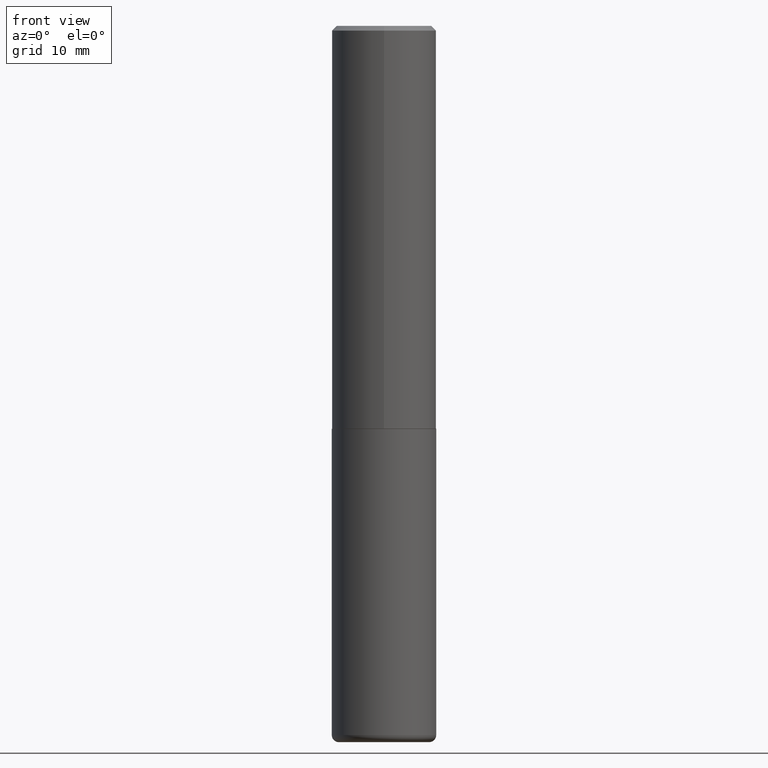
[diagram: clean part render]
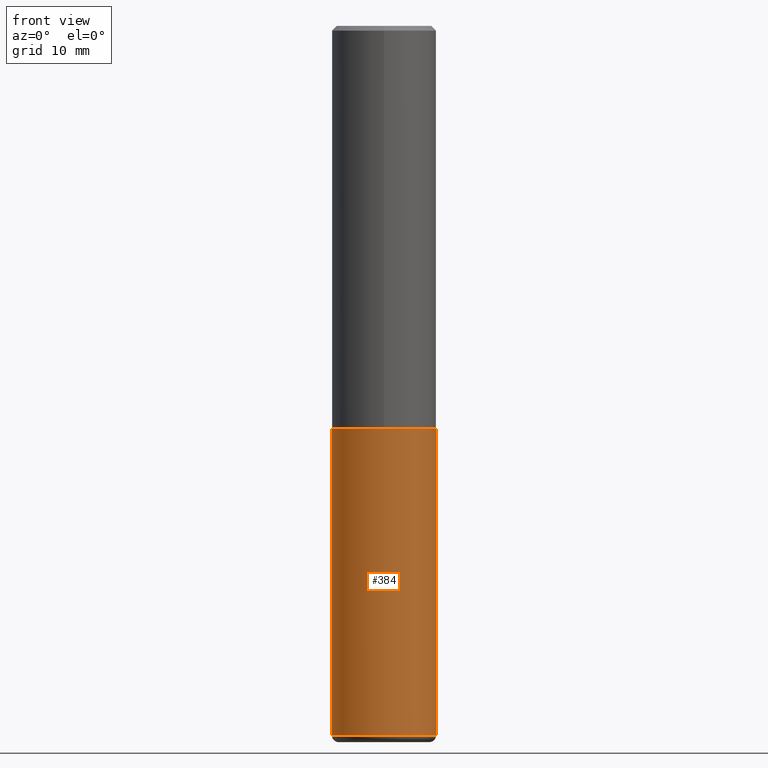
[diagram: same view with one face highlighted and labeled with its STEP entity id]
A machine part, front view. The second image highlights one B-rep face of the part: STEP entity #384.
In plain terms, the highlighted cylindrical surface (partial cylindrical patch) has radius 5.5563 mm, axis along (-0, 0, 1).
Its self-contained STEP definition (entity closure, byte-faithful):
#6 = CYLINDRICAL_SURFACE ( 'NONE', #35, 0.2187500000000000278 ) ;
#25 = EDGE_CURVE ( 'NONE', #200, #243, #87, .T. ) ;
#30 = DIRECTION ( 'NONE',  ( 1.000000000000000000, -6.982962677686267499E-15, 0.000000000000000000 ) ) ;
#35 = AXIS2_PLACEMENT_3D ( 'NONE', #268, #234, #39 ) ;
#36 = CARTESIAN_POINT ( 'NONE',  ( 0.2187500000000000000, -7.419397845041678890E-15, -1.687500000000000222 ) ) ;
#39 = DIRECTION ( 'NONE',  ( 1.000000000000000000, -6.982962677686266711E-15, 4.876176775795935232E-29 ) ) ;
#49 = AXIS2_PLACEMENT_3D ( 'NONE', #341, #247, #53 ) ;
#53 = DIRECTION ( 'NONE',  ( 1.000000000000000000, -6.982962677686271444E-15, 0.000000000000000000 ) ) ;
#61 = CARTESIAN_POINT ( 'NONE',  ( -0.2187500000000000000, -6.576474933355756753E-15, -1.687500000000000222 ) ) ;
#66 = CARTESIAN_POINT ( 'NONE',  ( 0.2187500000000001665, -1.189722266210801619E-14, -2.970000000000000195 ) ) ;
#87 = CIRCLE ( 'NONE', #49, 0.2187500000000000278 ) ;
#107 = CARTESIAN_POINT ( 'NONE',  ( 4.126728610437418568E-29, -5.891874759297808836E-15, -1.687500000000000222 ) ) ;
#126 = LINE ( 'NONE', #315, #252 ) ;
#129 = AXIS2_PLACEMENT_3D ( 'NONE', #107, #205, #30 ) ;
#131 = ORIENTED_EDGE ( 'NONE', *, *, #25, .T. ) ;
#166 = DIRECTION ( 'NONE',  ( -2.445468806185136877E-29, 3.491481338843145188E-15, 1.000000000000000000 ) ) ;
#177 = VERTEX_POINT ( 'NONE', #61 ) ;
#195 = DIRECTION ( 'NONE',  ( -2.445468806185136877E-29, 3.491481338843145188E-15, 1.000000000000000000 ) ) ;
#196 = CARTESIAN_POINT ( 'NONE',  ( -0.2187500000000000278, 1.554312234475219354E-15, -1.076017050993260762E-29 ) ) ;
#200 = VERTEX_POINT ( 'NONE', #418 ) ;
#205 = DIRECTION ( 'NONE',  ( -2.445468806185136597E-29, 3.491481338843145583E-15, 1.000000000000000000 ) ) ;
#234 = DIRECTION ( 'NONE',  ( -2.445468806185136597E-29, 3.491481338843145583E-15, 1.000000000000000000 ) ) ;
#237 = EDGE_LOOP ( 'NONE', ( #269, #131, #391, #263 ) ) ;
#238 = VECTOR ( 'NONE', #166, 39.37007874015748143 ) ;
#243 = VERTEX_POINT ( 'NONE', #66 ) ;
#247 = DIRECTION ( 'NONE',  ( -2.445468806185136597E-29, 3.491481338843145583E-15, 1.000000000000000000 ) ) ;
#252 = VECTOR ( 'NONE', #195, 39.37007874015748143 ) ;
#259 = CIRCLE ( 'NONE', #129, 0.2187500000000000000 ) ;
#260 = EDGE_CURVE ( 'NONE', #243, #326, #126, .T. ) ;
#261 = LINE ( 'NONE', #196, #238 ) ;
#263 = ORIENTED_EDGE ( 'NONE', *, *, #310, .F. ) ;
#268 = CARTESIAN_POINT ( 'NONE',  ( 0.000000000000000000, 0.000000000000000000, 0.000000000000000000 ) ) ;
#269 = ORIENTED_EDGE ( 'NONE', *, *, #317, .F. ) ;
#298 = FACE_OUTER_BOUND ( 'NONE', #237, .T. ) ;
#310 = EDGE_CURVE ( 'NONE', #177, #326, #259, .T. ) ;
#315 = CARTESIAN_POINT ( 'NONE',  ( 0.2187500000000000278, -1.527523085743871040E-15, 1.066663669705361025E-29 ) ) ;
#317 = EDGE_CURVE ( 'NONE', #200, #177, #261, .T. ) ;
#326 = VERTEX_POINT ( 'NONE', #36 ) ;
#341 = CARTESIAN_POINT ( 'NONE',  ( 7.263042354369856275E-29, -1.036969957636414298E-14, -2.970000000000000195 ) ) ;
#384 = ADVANCED_FACE ( 'NONE', ( #298 ), #6, .T. ) ;
#391 = ORIENTED_EDGE ( 'NONE', *, *, #260, .T. ) ;
#418 = CARTESIAN_POINT ( 'NONE',  ( -0.2187500000000001665, -8.815387341888922250E-15, -2.970000000000000195 ) ) ;